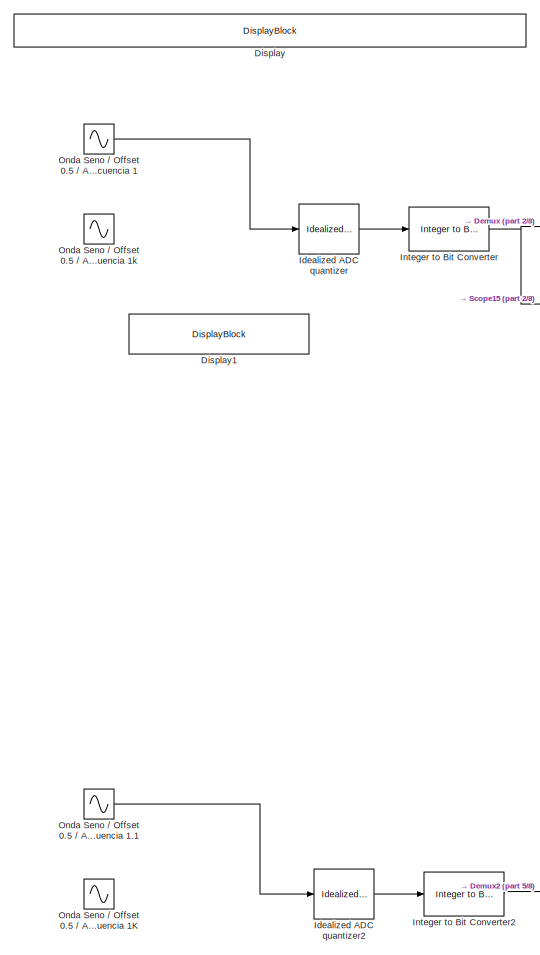
[diagram: root canvas - part 1/8, top left region]
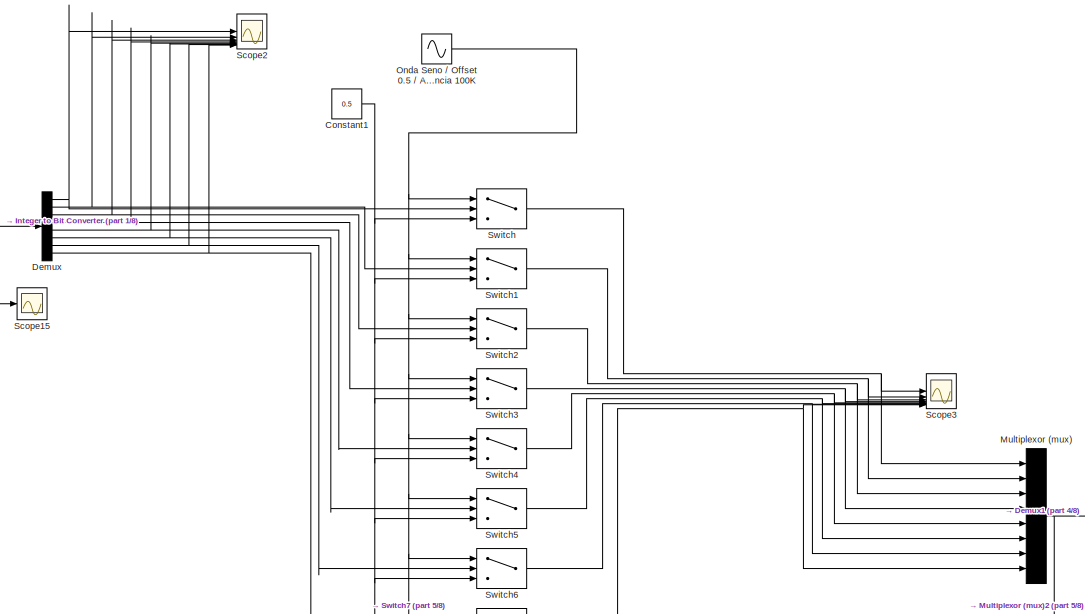
[diagram: root canvas - part 2/8, top center region]
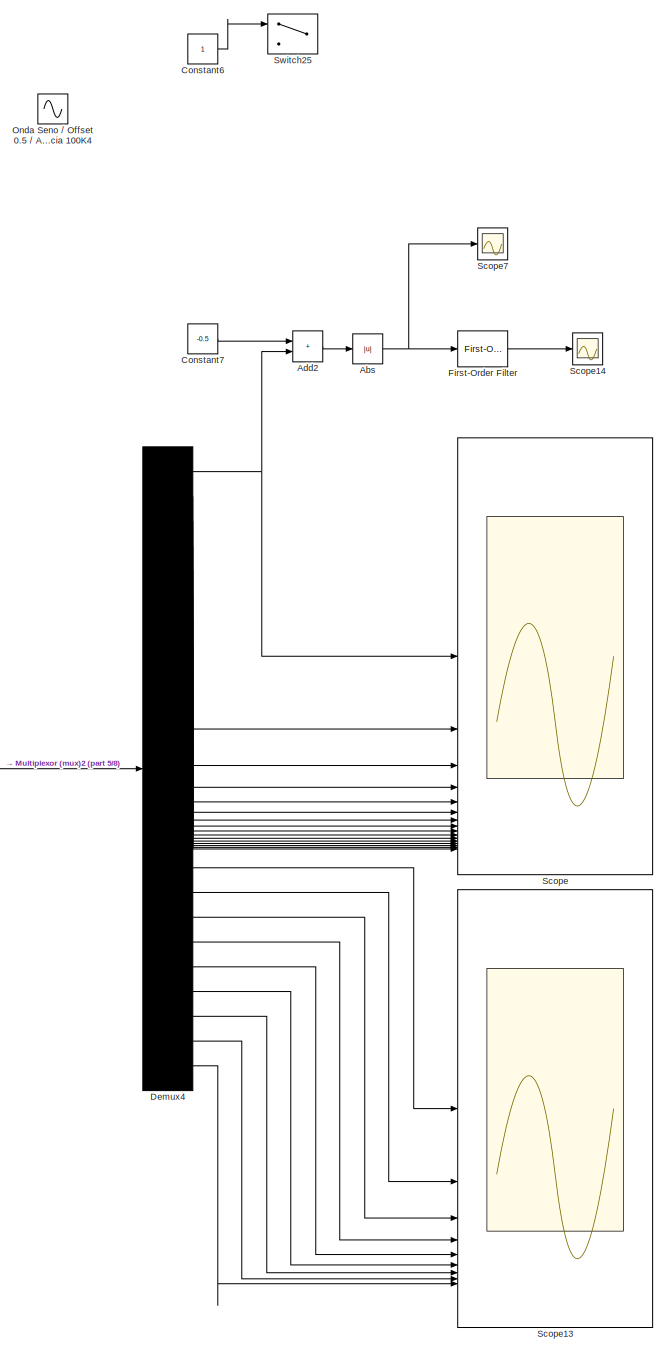
[diagram: root canvas - part 3/8, middle right region]
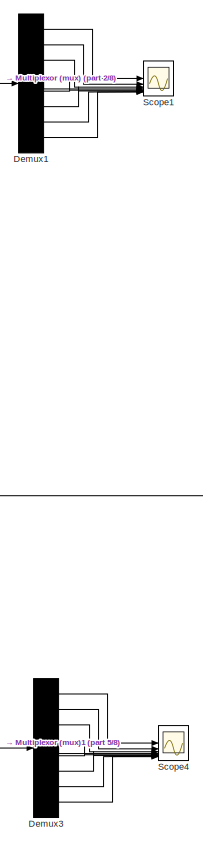
[diagram: root canvas - part 4/8, central region]
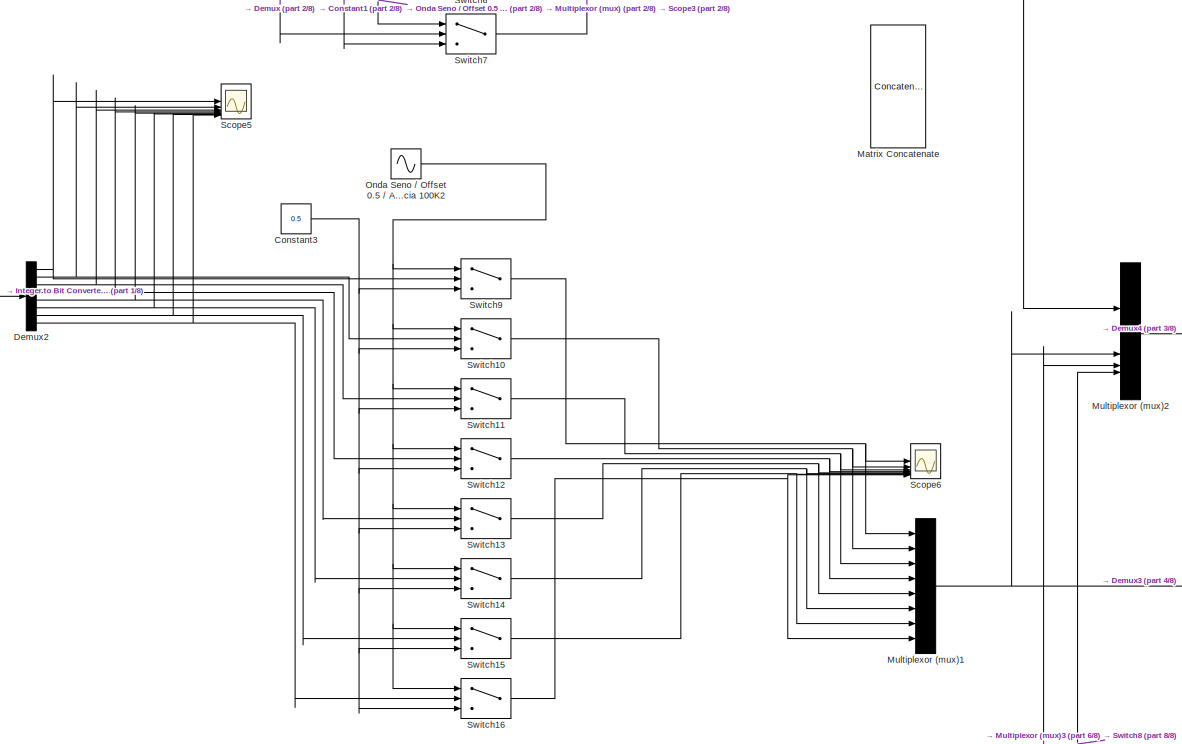
[diagram: root canvas - part 5/8, central region]
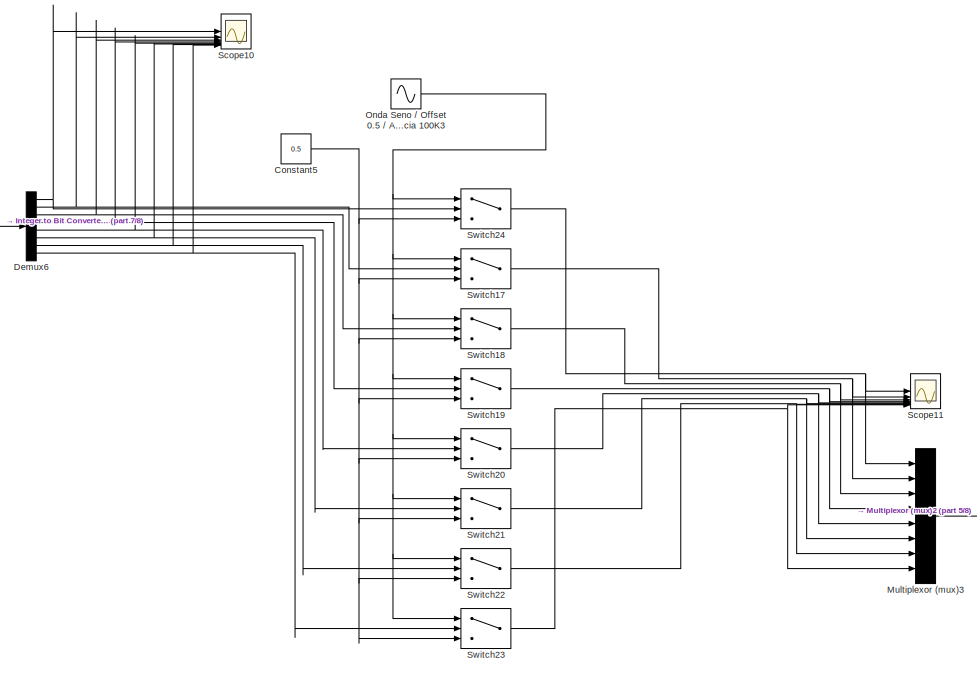
[diagram: root canvas - part 6/8, bottom center region]
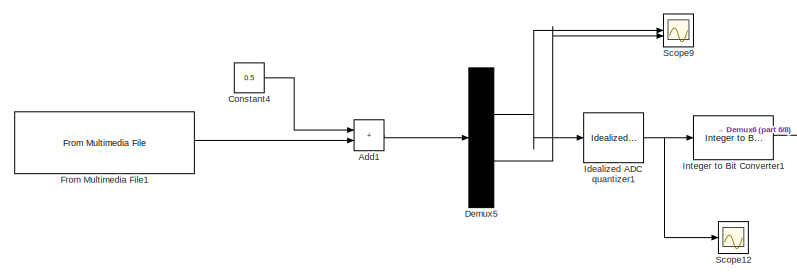
[diagram: root canvas - part 7/8, bottom left region]
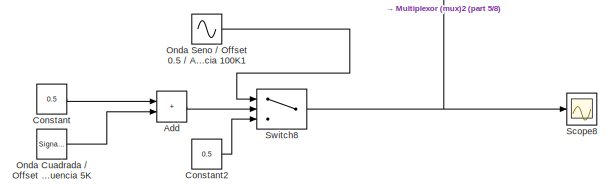
[diagram: root canvas - part 8/8, bottom center region]
MODEL slx_3daf6b3d968d
KIND model
CONFIG AbsTol = auto
CONFIG EnableMultiTasking = off
CONFIG FixedStep = auto
CONFIG MaxStep = auto
CONFIG MinStep = auto
CONFIG RelTol = 1e-3
CONFIG SampleTimeConstraint = Unconstrained
CONFIG SolverName = VariableStepAuto
CONFIG StartTime = 0.0
CONFIG StopTime = 1
BLOCK [Abs] Abs
  SaturateOnIntegerOverflow = off
BLOCK [Sum] Add
  IconShape = rectangular
BLOCK [Sum] Add1
  IconShape = rectangular
BLOCK [Sum] Add2
  IconShape = rectangular
BLOCK [Constant] Constant
  Value = 0.5
BLOCK [Constant] Constant1
  Value = 0.5
BLOCK [Constant] Constant2
  Value = 0.5
BLOCK [Constant] Constant3
  Value = 0.5
BLOCK [Constant] Constant4
  Value = 0.5
BLOCK [Constant] Constant5
  Value = 0.5
BLOCK [Constant] Constant6
BLOCK [Constant] Constant7
  Value = -0.5
BLOCK [Demux] Demux
  Outputs = 8
BLOCK [Demux] Demux1
  Outputs = 8
BLOCK [Demux] Demux2
  Outputs = 8
BLOCK [Demux] Demux3
  Outputs = 8
BLOCK [Demux] Demux4
  Outputs = 25
BLOCK [Demux] Demux5
  Outputs = 2
BLOCK [Demux] Demux6
  Outputs = 8
BLOCK [DisplayBlock] Display
  LabelPosition = Hide
  Layout = Fill available space
  Transparency = 1
BLOCK [DisplayBlock] Display1
  LabelPosition = Hide
  Transparency = 1
BLOCK [Reference] First-Order Filter  REF=spsFirstOrderFilterLib/First-Order
Filter
  LibrarySourceBlock = sps_lib/Control/Filters/First-Order\nFilter
  SourceBlock = spsFirstOrderFilterLib/First-Order\nFilter
  SourceType = First-Order Filter
BLOCK [Reference] From Multimedia File1  REF=dspvision/From Multimedia File
  LibrarySourceBlock = audiosources/From Multimedia File
  SourceBlock = dspvision/From Multimedia File
  SourceType = From Multimedia File
BLOCK [Reference] Idealized ADC quantizer  REF=simulink_extras/Additional
Discrete/Idealized ADC quantizer
  AttributesFormatString = (settings: %<NumberOfConverterBits>-bit converter\nVmin: %<Vmin>, Vmax: %<Vmax>)
  SourceBlock = simulink_extras/Additional\nDiscrete/Idealized ADC quantizer
  SourceType = IdealADC
BLOCK [Reference] Idealized ADC quantizer1  REF=simulink_extras/Additional
Discrete/Idealized ADC quantizer
  AttributesFormatString = (settings: %<NumberOfConverterBits>-bit converter\nVmin: %<Vmin>, Vmax: %<Vmax>)
  SourceBlock = simulink_extras/Additional\nDiscrete/Idealized ADC quantizer
  SourceType = IdealADC
BLOCK [Reference] Idealized ADC quantizer2  REF=simulink_extras/Additional
Discrete/Idealized ADC quantizer
  AttributesFormatString = (settings: %<NumberOfConverterBits>-bit converter\nVmin: %<Vmin>, Vmax: %<Vmax>)
  SourceBlock = simulink_extras/Additional\nDiscrete/Idealized ADC quantizer
  SourceType = IdealADC
BLOCK [Reference] Integer to Bit Converter  REF=simulink/Logic and Bit
Operations/Integer to Bit
Converter
  SourceBlock = simulink/Logic and Bit\nOperations/Integer to Bit\nConverter
  SourceType = Integer to Bit Converter
BLOCK [Reference] Integer to Bit Converter1  REF=simulink/Logic and Bit
Operations/Integer to Bit
Converter
  SourceBlock = simulink/Logic and Bit\nOperations/Integer to Bit\nConverter
  SourceType = Integer to Bit Converter
BLOCK [Reference] Integer to Bit Converter2  REF=simulink/Logic and Bit
Operations/Integer to Bit
Converter
  SourceBlock = simulink/Logic and Bit\nOperations/Integer to Bit\nConverter
  SourceType = Integer to Bit Converter
BLOCK [Concatenate] Matrix Concatenate
  ConcatenateDimension = 2
  Mode = Multidimensional array
  NumInputs = 8
BLOCK [Mux] Multiplexor (mux)
  DisplayOption = bar
  Inputs = 8
BLOCK [Mux] Multiplexor (mux)1
  DisplayOption = bar
  Inputs = 8
BLOCK [Mux] Multiplexor (mux)2
  DisplayOption = bar
BLOCK [Mux] Multiplexor (mux)3
  DisplayOption = bar
  Inputs = 8
BLOCK [SignalGenerator] Onda Cuadrada // Offset 0.5 // Amplitud 0.5 // Frecuencia 5K
  Amplitude = 0.5
  Frequency = 5000
  WaveForm = square
BLOCK [Sin] Onda Seno // Offset 0.5 // Amplitud 0.5 // Frecuencia 1
  Amplitude = 0.5
  Bias = 0.5
  Frequency = 6.28321853071
  SampleTime = 0
BLOCK [Sin] Onda Seno // Offset 0.5 // Amplitud 0.5 // Frecuencia 1.1
  Amplitude = 0.5
  Bias = 0.5
  Frequency = 6.28321853071
  SampleTime = 0
BLOCK [Sin] Onda Seno // Offset 0.5 // Amplitud 0.5 // Frecuencia 100K
  Amplitude = 0.5
  Bias = 0.5
  Frequency = 628318.5307
  SampleTime = 0
BLOCK [Sin] Onda Seno // Offset 0.5 // Amplitud 0.5 // Frecuencia 100K1
  Amplitude = 0.5
  Bias = 0.5
  Frequency = 628318.5307
  SampleTime = 0
BLOCK [Sin] Onda Seno // Offset 0.5 // Amplitud 0.5 // Frecuencia 100K2
  Amplitude = 0.5
  Bias = 0.5
  Frequency = 628318.5307
  SampleTime = 0
BLOCK [Sin] Onda Seno // Offset 0.5 // Amplitud 0.5 // Frecuencia 100K3
  Amplitude = 0.5
  Bias = 0.5
  Frequency = 628318.5307
  SampleTime = 0
BLOCK [Sin] Onda Seno // Offset 0.5 // Amplitud 0.5 // Frecuencia 100K4
  Amplitude = 0.5
  Bias = 0.5
  Frequency = 628318.5307
  SampleTime = 0
BLOCK [Sin] Onda Seno // Offset 0.5 // Amplitud 0.5 // Frecuencia 1K
  Amplitude = 0.5
  Bias = 0.5
  Frequency = 6283.185307
  SampleTime = 0
BLOCK [Sin] Onda Seno // Offset 0.5 // Amplitud 0.5 // Frecuencia 1k
  Amplitude = 0.5
  Bias = 0.5
  Frequency = 628321.853071
  SampleTime = 0
BLOCK [Scope] Scope
  Floating = off
  NumInputPorts = 16
  ScopeSpecificationString = Simulink.scopes.TimeScopeBlockCfg('CurrentConfiguration', extmgr.ConfigurationSet(extmgr.Configuration('Core','General UI',true),extmgr.Configuration('Core','Source UI',true),extmgr.Configuration('Sources','WiredSimulink',true,'DataLoggingVariableName','ScopeData5'),extmgr.Configuration('Visuals','Time Domain',true,'SerializedDisplays',{struct('MinYLimReal','0.28681','MaxYLimReal','1.06376','YLabe...<+13525ch>
BLOCK [Scope] Scope1
  Floating = off
  NumInputPorts = 8
  ScopeSpecificationString = Simulink.scopes.TimeScopeBlockCfg('CurrentConfiguration', extmgr.ConfigurationSet(extmgr.Configuration('Core','General UI',true),extmgr.Configuration('Core','Source UI',true),extmgr.Configuration('Sources','WiredSimulink',true,'DataLoggingVariableName','ScopeData1'),extmgr.Configuration('Visuals','Time Domain',true,'SerializedDisplays',{struct('MinYLimReal','-0.0291','MaxYLimReal','1.00474','YLabe...<+7034ch>
BLOCK [Scope] Scope10
  Floating = off
  NumInputPorts = 8
  ScopeSpecificationString = Simulink.scopes.TimeScopeBlockCfg('CurrentConfiguration', extmgr.ConfigurationSet(extmgr.Configuration('Core','General UI',true),extmgr.Configuration('Core','Source UI',true),extmgr.Configuration('Sources','WiredSimulink',true,'DataLoggingVariableName','ScopeData2'),extmgr.Configuration('Visuals','Time Domain',true,'SerializedDisplays',{struct('MinYLimReal','0.00000','MaxYLimReal','1.02725','YLabe...<+7080ch>
BLOCK [Scope] Scope11
  Floating = off
  NumInputPorts = 8
  ScopeSpecificationString = Simulink.scopes.TimeScopeBlockCfg('CurrentConfiguration', extmgr.ConfigurationSet(extmgr.Configuration('Core','General UI',true),extmgr.Configuration('Core','Source UI',true),extmgr.Configuration('Sources','WiredSimulink',true,'DataLoggingVariableName','ScopeData3'),extmgr.Configuration('Visuals','Time Domain',true,'SerializedDisplays',{struct('MinYLimReal','-0.0291','MaxYLimReal','1.00474','YLabe...<+7035ch>
BLOCK [Scope] Scope12
  Floating = off
  NumInputPorts = 1
  ScopeSpecificationString = Simulink.scopes.TimeScopeBlockCfg('CurrentConfiguration', extmgr.ConfigurationSet(extmgr.Configuration('Core','General UI',true),extmgr.Configuration('Core','Source UI',true),extmgr.Configuration('Sources','WiredSimulink',true,'DataLoggingVariableName','ScopeData4'),extmgr.Configuration('Visuals','Time Domain',true,'SerializedDisplays',{struct('MinYLimReal','93.02783','MaxYLimReal','147.99131','YL...<+1531ch>
BLOCK [Scope] Scope13
  Floating = off
  NumInputPorts = 9
  ScopeSpecificationString = Simulink.scopes.TimeScopeBlockCfg('CurrentConfiguration', extmgr.ConfigurationSet(extmgr.Configuration('Core','General UI',true),extmgr.Configuration('Core','Source UI',true),extmgr.Configuration('Sources','WiredSimulink',true,'DataLoggingVariableName','ScopeData5'),extmgr.Configuration('Visuals','Time Domain',true,'SerializedDisplays',{struct('MinYLimReal','-0.65089','MaxYLimReal','1.06376','YLab...<+7989ch>
BLOCK [Scope] Scope14
  Floating = off
  NumInputPorts = 1
  ScopeSpecificationString = Simulink.scopes.TimeScopeBlockCfg('CurrentConfiguration', extmgr.ConfigurationSet(extmgr.Configuration('Core','General UI',true),extmgr.Configuration('Core','Source UI',true),extmgr.Configuration('Sources','WiredSimulink',true,'DataLoggingVariableName','ScopeData2'),extmgr.Configuration('Visuals','Time Domain',true,'SerializedDisplays',{struct('MinYLimReal','-0.41831','MaxYLimReal','0.76275','YLab...<+1550ch>
BLOCK [Scope] Scope15
  Floating = off
  NumInputPorts = 1
  ScopeSpecificationString = Simulink.scopes.TimeScopeBlockCfg('CurrentConfiguration', extmgr.ConfigurationSet(extmgr.Configuration('Core','General UI',true),extmgr.Configuration('Core','Source UI',true),extmgr.Configuration('Sources','WiredSimulink',true,'DataLoggingVariableName','ScopeData1'),extmgr.Configuration('Visuals','Time Domain',true,'SerializedDisplays',{struct('MinYLimReal','-0.08256','MaxYLimReal','1.0463','YLabe...<+1723ch>
BLOCK [Scope] Scope2
  Floating = off
  NumInputPorts = 8
  ScopeSpecificationString = Simulink.scopes.TimeScopeBlockCfg('CurrentConfiguration', extmgr.ConfigurationSet(extmgr.Configuration('Core','General UI',true),extmgr.Configuration('Core','Source UI',true),extmgr.Configuration('Sources','WiredSimulink',true,'DataLoggingVariableName','ScopeData1'),extmgr.Configuration('Visuals','Time Domain',true,'SerializedDisplays',{struct('MinYLimReal','0.00000','MaxYLimReal','1.10121','YLabe...<+7166ch>
BLOCK [Scope] Scope3
  Floating = off
  NumInputPorts = 8
  ScopeSpecificationString = Simulink.scopes.TimeScopeBlockCfg('CurrentConfiguration', extmgr.ConfigurationSet(extmgr.Configuration('Core','General UI',true),extmgr.Configuration('Core','Source UI',true),extmgr.Configuration('Sources','WiredSimulink',true,'DataLoggingVariableName','ScopeData2'),extmgr.Configuration('Visuals','Time Domain',true,'SerializedDisplays',{struct('MinYLimReal','0.00000','MaxYLimReal','1.87213','YLabe...<+6956ch>
BLOCK [Scope] Scope4
  Floating = off
  NumInputPorts = 8
  ScopeSpecificationString = Simulink.scopes.TimeScopeBlockCfg('CurrentConfiguration', extmgr.ConfigurationSet(extmgr.Configuration('Core','General UI',true),extmgr.Configuration('Core','Source UI',true),extmgr.Configuration('Sources','WiredSimulink',true,'DataLoggingVariableName','ScopeData2'),extmgr.Configuration('Visuals','Time Domain',true,'SerializedDisplays',{struct('MinYLimReal','-0.0291','MaxYLimReal','1.00474','YLabe...<+7035ch>
BLOCK [Scope] Scope5
  Floating = off
  NumInputPorts = 8
  ScopeSpecificationString = Simulink.scopes.TimeScopeBlockCfg('CurrentConfiguration', extmgr.ConfigurationSet(extmgr.Configuration('Core','General UI',true),extmgr.Configuration('Core','Source UI',true),extmgr.Configuration('Sources','WiredSimulink',true,'DataLoggingVariableName','ScopeData3'),extmgr.Configuration('Visuals','Time Domain',true,'SerializedDisplays',{struct('MinYLimReal','0.00000','MaxYLimReal','1.10121','YLabe...<+7166ch>
BLOCK [Scope] Scope6
  Floating = off
  NumInputPorts = 8
  ScopeSpecificationString = Simulink.scopes.TimeScopeBlockCfg('CurrentConfiguration', extmgr.ConfigurationSet(extmgr.Configuration('Core','General UI',true),extmgr.Configuration('Core','Source UI',true),extmgr.Configuration('Sources','WiredSimulink',true,'DataLoggingVariableName','ScopeData4'),extmgr.Configuration('Visuals','Time Domain',true,'SerializedDisplays',{struct('MinYLimReal','-0.0291','MaxYLimReal','1.00474','YLabe...<+7026ch>
BLOCK [Scope] Scope7
  Floating = off
  NumInputPorts = 1
  ScopeSpecificationString = Simulink.scopes.TimeScopeBlockCfg('CurrentConfiguration', extmgr.ConfigurationSet(extmgr.Configuration('Core','General UI',true),extmgr.Configuration('Core','Source UI',true),extmgr.Configuration('Sources','WiredSimulink',true,'DataLoggingVariableName','ScopeData1'),extmgr.Configuration('Visuals','Time Domain',true,'SerializedDisplays',{struct('MinYLimReal','-0.21041','MaxYLimReal','1.11514','YLab...<+1564ch>
BLOCK [Scope] Scope8
  Floating = off
  NumInputPorts = 1
  ScopeSpecificationString = Simulink.scopes.TimeScopeBlockCfg('CurrentConfiguration', extmgr.ConfigurationSet(extmgr.Configuration('Core','General UI',true),extmgr.Configuration('Core','Source UI',true),extmgr.Configuration('Sources','WiredSimulink',true,'DataLoggingVariableName','ScopeData7'),extmgr.Configuration('Visuals','Time Domain',true,'SerializedDisplays',{struct('MinYLimReal','-0.04216','MaxYLimReal','0.9651','YLabe...<+1500ch>
BLOCK [Scope] Scope9
  Floating = off
  NumInputPorts = 2
  ScopeSpecificationString = Simulink.scopes.TimeScopeBlockCfg('CurrentConfiguration', extmgr.ConfigurationSet(extmgr.Configuration('Core','General UI',true),extmgr.Configuration('Core','Source UI',true),extmgr.Configuration('Sources','WiredSimulink',true,'DataLoggingVariableName','ScopeData1'),extmgr.Configuration('Visuals','Time Domain',true,'SerializedDisplays',{struct('MinYLimReal','-0.05659','MaxYLimReal','0.83229','YLab...<+2334ch>
BLOCK [Switch] Switch
  Criteria = u2 > Threshold
  InputSameDT = off
  SaturateOnIntegerOverflow = off
  Threshold = 0.5
BLOCK [Switch] Switch1
  Criteria = u2 > Threshold
  InputSameDT = off
  SaturateOnIntegerOverflow = off
  Threshold = 0.5
BLOCK [Switch] Switch10
  Criteria = u2 > Threshold
  InputSameDT = off
  SaturateOnIntegerOverflow = off
  Threshold = 0.5
BLOCK [Switch] Switch11
  Criteria = u2 > Threshold
  InputSameDT = off
  SaturateOnIntegerOverflow = off
  Threshold = 0.5
BLOCK [Switch] Switch12
  Criteria = u2 > Threshold
  InputSameDT = off
  SaturateOnIntegerOverflow = off
  Threshold = 0.5
BLOCK [Switch] Switch13
  Criteria = u2 > Threshold
  InputSameDT = off
  SaturateOnIntegerOverflow = off
  Threshold = 0.5
BLOCK [Switch] Switch14
  Criteria = u2 > Threshold
  InputSameDT = off
  SaturateOnIntegerOverflow = off
  Threshold = 0.5
BLOCK [Switch] Switch15
  Criteria = u2 > Threshold
  InputSameDT = off
  SaturateOnIntegerOverflow = off
  Threshold = 0.5
BLOCK [Switch] Switch16
  Criteria = u2 > Threshold
  InputSameDT = off
  SaturateOnIntegerOverflow = off
  Threshold = 0.5
BLOCK [Switch] Switch17
  Criteria = u2 > Threshold
  InputSameDT = off
  SaturateOnIntegerOverflow = off
  Threshold = 0.5
BLOCK [Switch] Switch18
  Criteria = u2 > Threshold
  InputSameDT = off
  SaturateOnIntegerOverflow = off
  Threshold = 0.5
BLOCK [Switch] Switch19
  Criteria = u2 > Threshold
  InputSameDT = off
  SaturateOnIntegerOverflow = off
  Threshold = 0.5
BLOCK [Switch] Switch2
  Criteria = u2 > Threshold
  InputSameDT = off
  SaturateOnIntegerOverflow = off
  Threshold = 0.5
BLOCK [Switch] Switch20
  Criteria = u2 > Threshold
  InputSameDT = off
  SaturateOnIntegerOverflow = off
  Threshold = 0.5
BLOCK [Switch] Switch21
  Criteria = u2 > Threshold
  InputSameDT = off
  SaturateOnIntegerOverflow = off
  Threshold = 0.5
BLOCK [Switch] Switch22
  Criteria = u2 > Threshold
  InputSameDT = off
  SaturateOnIntegerOverflow = off
  Threshold = 0.5
BLOCK [Switch] Switch23
  Criteria = u2 > Threshold
  InputSameDT = off
  SaturateOnIntegerOverflow = off
  Threshold = 0.5
BLOCK [Switch] Switch24
  Criteria = u2 > Threshold
  InputSameDT = off
  SaturateOnIntegerOverflow = off
  Threshold = 0.5
BLOCK [Switch] Switch25
  Criteria = u2 > Threshold
  InputSameDT = off
  SaturateOnIntegerOverflow = off
  Threshold = 0.8
BLOCK [Switch] Switch3
  Criteria = u2 > Threshold
  InputSameDT = off
  SaturateOnIntegerOverflow = off
  Threshold = 0.5
BLOCK [Switch] Switch4
  Criteria = u2 > Threshold
  InputSameDT = off
  SaturateOnIntegerOverflow = off
  Threshold = 0.5
BLOCK [Switch] Switch5
  Criteria = u2 > Threshold
  InputSameDT = off
  SaturateOnIntegerOverflow = off
  Threshold = 0.5
BLOCK [Switch] Switch6
  Criteria = u2 > Threshold
  InputSameDT = off
  SaturateOnIntegerOverflow = off
  Threshold = 0.5
BLOCK [Switch] Switch7
  Criteria = u2 > Threshold
  InputSameDT = off
  SaturateOnIntegerOverflow = off
  Threshold = 0.5
BLOCK [Switch] Switch8
  Criteria = u2 > Threshold
  InputSameDT = off
  SaturateOnIntegerOverflow = off
  Threshold = 0.5
BLOCK [Switch] Switch9
  Criteria = u2 > Threshold
  InputSameDT = off
  SaturateOnIntegerOverflow = off
  Threshold = 0.5
NET Abs:1 -> First-Order Filter:1, Scope7:1
LINE Add1:1 -> Demux5:1
LINE Add2:1 -> Abs:1
LINE Add:1 -> Switch8:2
NET Constant1:1 -> Switch1:3, Switch2:3, Switch3:3, Switch4:3, Switch5:3, Switch6:3, Switch7:3, Switch:3
LINE Constant2:1 -> Switch8:3
NET Constant3:1 -> Switch10:3, Switch11:3, Switch12:3, Switch13:3, Switch14:3, Switch15:3, Switch16:3, Switch9:3
LINE Constant4:1 -> Add1:1
NET Constant5:1 -> Switch17:3, Switch18:3, Switch19:3, Switch20:3, Switch21:3, Switch22:3, Switch23:3, Switch24:3
LINE Constant6:1 -> Switch25:1
LINE Constant7:1 -> Add2:1
LINE Constant:1 -> Add:1
LINE Demux1:1 -> Scope1:1
LINE Demux1:2 -> Scope1:2
LINE Demux1:3 -> Scope1:3
LINE Demux1:4 -> Scope1:4
LINE Demux1:5 -> Scope1:5
LINE Demux1:6 -> Scope1:6
LINE Demux1:7 -> Scope1:7
LINE Demux1:8 -> Scope1:8
NET Demux2:1 -> Scope5:1, Switch9:2
NET Demux2:2 -> Scope5:2, Switch10:2
NET Demux2:3 -> Scope5:3, Switch11:2
NET Demux2:4 -> Scope5:4, Switch12:2
NET Demux2:5 -> Scope5:5, Switch13:2
NET Demux2:6 -> Scope5:6, Switch14:2
NET Demux2:7 -> Scope5:7, Switch15:2
NET Demux2:8 -> Scope5:8, Switch16:2
LINE Demux3:1 -> Scope4:1
LINE Demux3:2 -> Scope4:2
LINE Demux3:3 -> Scope4:3
LINE Demux3:4 -> Scope4:4
LINE Demux3:5 -> Scope4:5
LINE Demux3:6 -> Scope4:6
LINE Demux3:7 -> Scope4:7
LINE Demux3:8 -> Scope4:8
NET Demux4:1 -> Add2:2, Scope:1
LINE Demux4:10 -> Scope:10
LINE Demux4:11 -> Scope:11
LINE Demux4:12 -> Scope:12
LINE Demux4:13 -> Scope:13
LINE Demux4:14 -> Scope:14
LINE Demux4:15 -> Scope:15
LINE Demux4:16 -> Scope:16
LINE Demux4:17 -> Scope13:1
LINE Demux4:18 -> Scope13:2
LINE Demux4:19 -> Scope13:3
LINE Demux4:2 -> Scope:2
LINE Demux4:20 -> Scope13:4
LINE Demux4:21 -> Scope13:5
LINE Demux4:22 -> Scope13:6
LINE Demux4:23 -> Scope13:7
LINE Demux4:24 -> Scope13:8
LINE Demux4:25 -> Scope13:9
LINE Demux4:3 -> Scope:3
LINE Demux4:4 -> Scope:4
LINE Demux4:5 -> Scope:5
LINE Demux4:6 -> Scope:6
LINE Demux4:7 -> Scope:7
LINE Demux4:8 -> Scope:8
LINE Demux4:9 -> Scope:9
NET Demux5:1 -> Idealized ADC quantizer1:1, Scope9:1
LINE Demux5:2 -> Scope9:2
NET Demux6:1 -> Scope10:1, Switch24:2
NET Demux6:2 -> Scope10:2, Switch17:2
NET Demux6:3 -> Scope10:3, Switch18:2
NET Demux6:4 -> Scope10:4, Switch19:2
NET Demux6:5 -> Scope10:5, Switch20:2
NET Demux6:6 -> Scope10:6, Switch21:2
NET Demux6:7 -> Scope10:7, Switch22:2
NET Demux6:8 -> Scope10:8, Switch23:2
NET Demux:1 -> Scope2:1, Switch:2
NET Demux:2 -> Scope2:2, Switch1:2
NET Demux:3 -> Scope2:3, Switch2:2
NET Demux:4 -> Scope2:4, Switch3:2
NET Demux:5 -> Scope2:5, Switch4:2
NET Demux:6 -> Scope2:6, Switch5:2
NET Demux:7 -> Scope2:7, Switch6:2
NET Demux:8 -> Scope2:8, Switch7:2
LINE First-Order Filter:1 -> Scope14:1
LINE From Multimedia File1:1 -> Add1:2
NET Idealized ADC quantizer1:1 -> Integer to Bit Converter1:1, Scope12:1
LINE Idealized ADC quantizer2:1 -> Integer to Bit Converter2:1
LINE Idealized ADC quantizer:1 -> Integer to Bit Converter:1
LINE Integer to Bit Converter1:1 -> Demux6:1
LINE Integer to Bit Converter2:1 -> Demux2:1
NET Integer to Bit Converter:1 -> Demux:1, Scope15:1
NET Multiplexor (mux)1:1 -> Demux3:1, Multiplexor (mux)2:2
LINE Multiplexor (mux)2:1 -> Demux4:1
LINE Multiplexor (mux)3:1 -> Multiplexor (mux)2:3
NET Multiplexor (mux):1 -> Demux1:1, Multiplexor (mux)2:1
LINE Onda Cuadrada // Offset 0.5 // Amplitud 0.5 // Frecuencia 5K:1 -> Add:2
LINE Onda Seno // Offset 0.5 // Amplitud 0.5 // Frecuencia 1.1:1 -> Idealized ADC quantizer2:1
LINE Onda Seno // Offset 0.5 // Amplitud 0.5 // Frecuencia 100K1:1 -> Switch8:1
NET Onda Seno // Offset 0.5 // Amplitud 0.5 // Frecuencia 100K2:1 -> Switch10:1, Switch11:1, Switch12:1, Switch13:1, Switch14:1, Switch15:1, Switch16:1, Switch9:1
NET Onda Seno // Offset 0.5 // Amplitud 0.5 // Frecuencia 100K3:1 -> Switch17:1, Switch18:1, Switch19:1, Switch20:1, Switch21:1, Switch22:1, Switch23:1, Switch24:1
NET Onda Seno // Offset 0.5 // Amplitud 0.5 // Frecuencia 100K:1 -> Switch1:1, Switch2:1, Switch3:1, Switch4:1, Switch5:1, Switch6:1, Switch7:1, Switch:1
LINE Onda Seno // Offset 0.5 // Amplitud 0.5 // Frecuencia 1:1 -> Idealized ADC quantizer:1
NET Switch10:1 -> Multiplexor (mux)1:2, Scope6:2
NET Switch11:1 -> Multiplexor (mux)1:3, Scope6:3
NET Switch12:1 -> Multiplexor (mux)1:4, Scope6:4
NET Switch13:1 -> Multiplexor (mux)1:5, Scope6:5
NET Switch14:1 -> Multiplexor (mux)1:6, Scope6:6
NET Switch15:1 -> Multiplexor (mux)1:7, Scope6:7
NET Switch16:1 -> Multiplexor (mux)1:8, Scope6:8
NET Switch17:1 -> Multiplexor (mux)3:2, Scope11:2
NET Switch18:1 -> Multiplexor (mux)3:3, Scope11:3
NET Switch19:1 -> Multiplexor (mux)3:4, Scope11:4
NET Switch1:1 -> Multiplexor (mux):2, Scope3:2
NET Switch20:1 -> Multiplexor (mux)3:5, Scope11:5
NET Switch21:1 -> Multiplexor (mux)3:6, Scope11:6
NET Switch22:1 -> Multiplexor (mux)3:7, Scope11:7
NET Switch23:1 -> Multiplexor (mux)3:8, Scope11:8
NET Switch24:1 -> Multiplexor (mux)3:1, Scope11:1
NET Switch2:1 -> Multiplexor (mux):3, Scope3:3
NET Switch3:1 -> Multiplexor (mux):4, Scope3:4
NET Switch4:1 -> Multiplexor (mux):5, Scope3:5
NET Switch5:1 -> Multiplexor (mux):6, Scope3:6
NET Switch6:1 -> Multiplexor (mux):7, Scope3:7
NET Switch7:1 -> Multiplexor (mux):8, Scope3:8
NET Switch8:1 -> Multiplexor (mux)2:4, Scope8:1
NET Switch9:1 -> Multiplexor (mux)1:1, Scope6:1
NET Switch:1 -> Multiplexor (mux):1, Scope3:1
note: NET lines group one-source signal fan-out (src -> all destinations, sorted); 1:1 wires keep LINE
